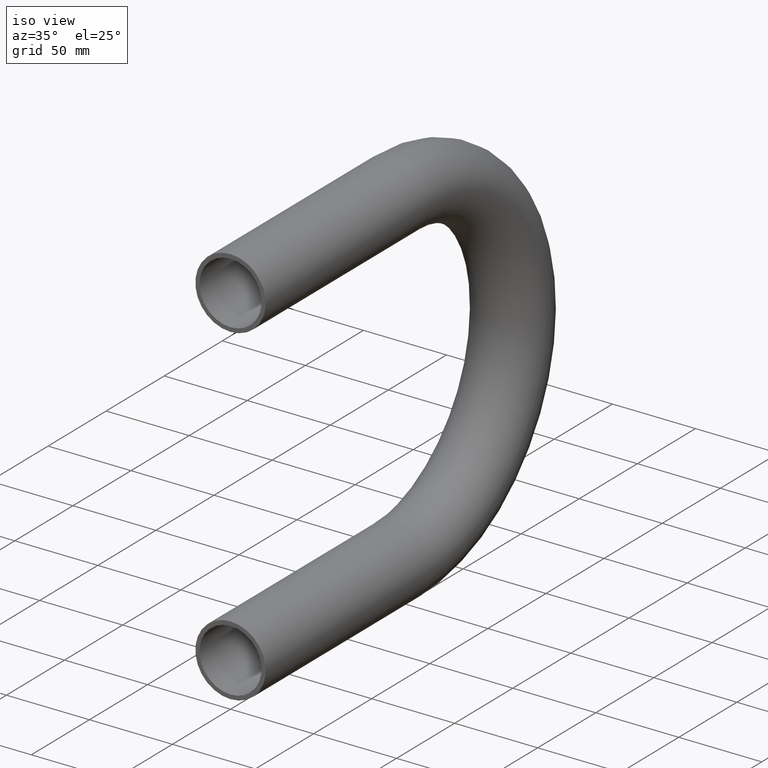
[diagram: clean part render]
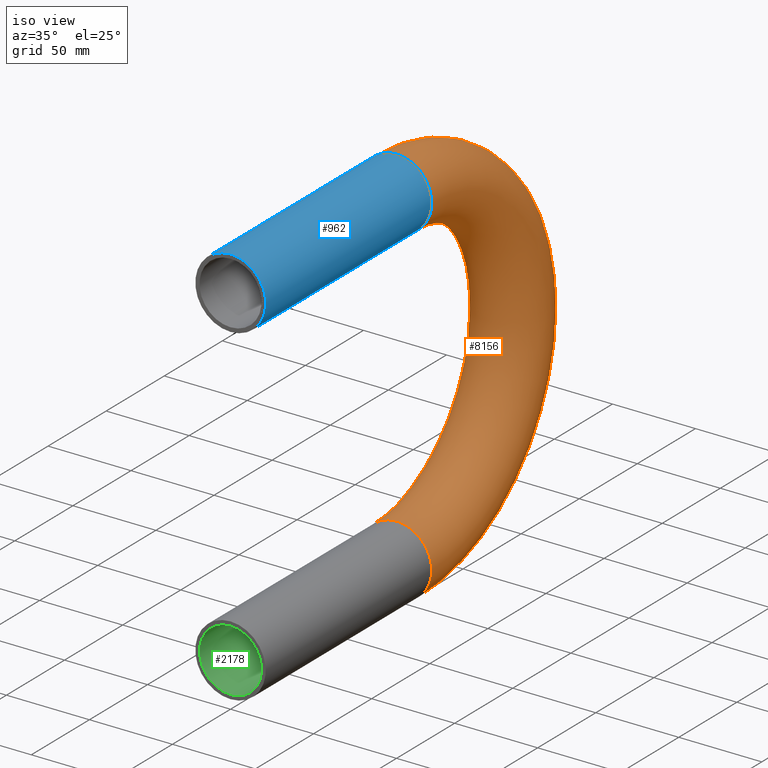
[diagram: same view with three faces highlighted in distinct colors, each labeled with its STEP entity id]
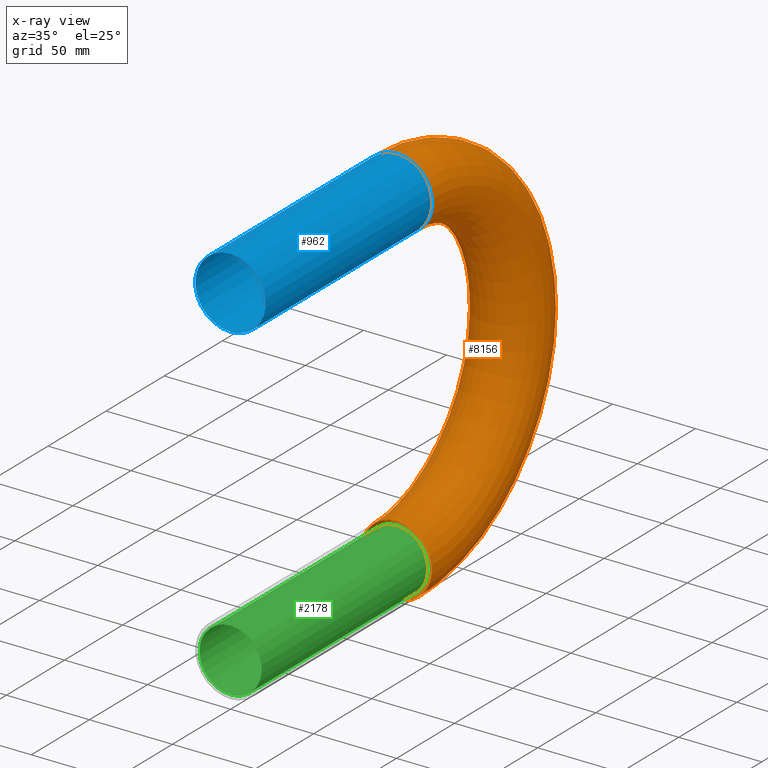
[diagram: x-ray of the same camera — body ghosted, the three highlighted faces saturated]
A machine part, iso view with three faces highlighted in distinct colors.
The next image is the same camera in x-ray (body ghosted, the three faces saturated) — at least one of them is partly hidden behind the body in this view.
Their STEP definitions:

[orange] entity #8156 — the highlighted toroidal blend (fillet) surface has major radius 100 mm and minor (blend) radius 21.2 mm.
#243 = DIRECTION ( 'NONE',  ( -1.000000000000000000, -0.000000000000000000, 0.000000000000000000 ) ) ;
#1250 = EDGE_CURVE ( 'NONE', #8990, #8990, #12047, .T. ) ;
#1697 = CARTESIAN_POINT ( 'NONE',  ( 0.000000000000000000, 142.9203673205103371, 5.220638928328961672E-29 ) ) ;
#2113 = DIRECTION ( 'NONE',  ( 0.000000000000000000, -1.000000000000000000, -1.224646799147353207E-16 ) ) ;
#2362 = CIRCLE ( 'NONE', #2966, 21.19999999999999574 ) ;
#2966 = AXIS2_PLACEMENT_3D ( 'NONE', #6913, #2113, #9660 ) ;
#3018 = DIRECTION ( 'NONE',  ( 0.000000000000000000, 0.000000000000000000, 1.000000000000000000 ) ) ;
#3861 = AXIS2_PLACEMENT_3D ( 'NONE', #9674, #243, #3018 ) ;
#4289 = FACE_OUTER_BOUND ( 'NONE', #4382, .T. ) ;
#4382 = EDGE_LOOP ( 'NONE', ( #10157 ) ) ;
#4556 = DIRECTION ( 'NONE',  ( 0.000000000000000000, 0.000000000000000000, 1.000000000000000000 ) ) ;
#4910 = CARTESIAN_POINT ( 'NONE',  ( 0.000000000000000000, 142.9203673205103371, -221.2000000000000171 ) ) ;
#5566 = EDGE_LOOP ( 'NONE', ( #8139 ) ) ;
#5906 = FACE_OUTER_BOUND ( 'NONE', #5566, .T. ) ;
#6205 = TOROIDAL_SURFACE ( 'NONE', #3861, 100.0000000000000000, 21.19999999999999929 ) ;
#6492 = DIRECTION ( 'NONE',  ( 0.000000000000000000, 1.000000000000000000, 0.000000000000000000 ) ) ;
#6913 = CARTESIAN_POINT ( 'NONE',  ( 0.000000000000000000, 142.9203673205103371, -200.0000000000000000 ) ) ;
#7235 = AXIS2_PLACEMENT_3D ( 'NONE', #1697, #6492, #4556 ) ;
#8139 = ORIENTED_EDGE ( 'NONE', *, *, #1250, .T. ) ;
#8156 = ADVANCED_FACE ( 'NONE', ( #5906, #4289 ), #6205, .T. ) ;
#8453 = EDGE_CURVE ( 'NONE', #8839, #8839, #2362, .T. ) ;
#8839 = VERTEX_POINT ( 'NONE', #4910 ) ;
#8990 = VERTEX_POINT ( 'NONE', #9534 ) ;
#9534 = CARTESIAN_POINT ( 'NONE',  ( 0.000000000000000000, 142.9203673205103371, 21.19999999999999929 ) ) ;
#9660 = DIRECTION ( 'NONE',  ( 0.000000000000000000, 0.000000000000000000, -1.000000000000000000 ) ) ;
#9674 = CARTESIAN_POINT ( 'NONE',  ( 0.000000000000000000, 142.9203673205103371, -100.0000000000000000 ) ) ;
#10157 = ORIENTED_EDGE ( 'NONE', *, *, #8453, .F. ) ;
#12047 = CIRCLE ( 'NONE', #7235, 21.19999999999999929 ) ;

[blue] entity #962 — the highlighted cylindrical surface (bore or boss wall) has radius 21.2 mm, axis along (-0, -1, -0).
#57 = AXIS2_PLACEMENT_3D ( 'NONE', #269, #1123, #2189 ) ;
#269 = CARTESIAN_POINT ( 'NONE',  ( 0.000000000000000000, 0.000000000000000000, 0.000000000000000000 ) ) ;
#962 = ADVANCED_FACE ( 'NONE', ( #1838, #1538 ), #11018, .T. ) ;
#1085 = CIRCLE ( 'NONE', #57, 21.19999999999999929 ) ;
#1123 = DIRECTION ( 'NONE',  ( 0.000000000000000000, 1.000000000000000000, 0.000000000000000000 ) ) ;
#1250 = EDGE_CURVE ( 'NONE', #8990, #8990, #12047, .T. ) ;
#1284 = EDGE_LOOP ( 'NONE', ( #6725 ) ) ;
#1538 = FACE_OUTER_BOUND ( 'NONE', #8233, .T. ) ;
#1697 = CARTESIAN_POINT ( 'NONE',  ( 0.000000000000000000, 142.9203673205103371, 5.220638928328961672E-29 ) ) ;
#1838 = FACE_OUTER_BOUND ( 'NONE', #1284, .T. ) ;
#2035 = CARTESIAN_POINT ( 'NONE',  ( 0.000000000000000000, 142.9203673205103371, 5.220638928328961672E-29 ) ) ;
#2075 = EDGE_CURVE ( 'NONE', #2354, #2354, #1085, .T. ) ;
#2189 = DIRECTION ( 'NONE',  ( 0.000000000000000000, 0.000000000000000000, 1.000000000000000000 ) ) ;
#2354 = VERTEX_POINT ( 'NONE', #2959 ) ;
#2959 = CARTESIAN_POINT ( 'NONE',  ( 0.000000000000000000, 0.000000000000000000, 21.19999999999999929 ) ) ;
#4047 = ORIENTED_EDGE ( 'NONE', *, *, #2075, .T. ) ;
#4556 = DIRECTION ( 'NONE',  ( 0.000000000000000000, 0.000000000000000000, 1.000000000000000000 ) ) ;
#6492 = DIRECTION ( 'NONE',  ( 0.000000000000000000, 1.000000000000000000, 0.000000000000000000 ) ) ;
#6725 = ORIENTED_EDGE ( 'NONE', *, *, #1250, .F. ) ;
#6782 = DIRECTION ( 'NONE',  ( -0.000000000000000000, -1.000000000000000000, -3.652830612043741974E-31 ) ) ;
#7235 = AXIS2_PLACEMENT_3D ( 'NONE', #1697, #6492, #4556 ) ;
#8233 = EDGE_LOOP ( 'NONE', ( #4047 ) ) ;
#8990 = VERTEX_POINT ( 'NONE', #9534 ) ;
#9534 = CARTESIAN_POINT ( 'NONE',  ( 0.000000000000000000, 142.9203673205103371, 21.19999999999999929 ) ) ;
#10885 = AXIS2_PLACEMENT_3D ( 'NONE', #2035, #6782, #11468 ) ;
#11018 = CYLINDRICAL_SURFACE ( 'NONE', #10885, 21.19999999999999929 ) ;
#11468 = DIRECTION ( 'NONE',  ( 0.000000000000000000, 0.000000000000000000, -1.000000000000000000 ) ) ;
#12047 = CIRCLE ( 'NONE', #7235, 21.19999999999999929 ) ;

[green] entity #2178 — the highlighted cylindrical surface (bore or boss wall) has radius 18.7 mm, axis along (0, -1, 0).
#313 = ORIENTED_EDGE ( 'NONE', *, *, #3053, .F. ) ;
#874 = VERTEX_POINT ( 'NONE', #3901 ) ;
#947 = DIRECTION ( 'NONE',  ( 0.000000000000000000, 1.224646799147353700E-16, -1.000000000000000000 ) ) ;
#1140 = AXIS2_PLACEMENT_3D ( 'NONE', #7378, #7082, #947 ) ;
#1488 = EDGE_CURVE ( 'NONE', #8697, #8697, #4927, .T. ) ;
#2178 = ADVANCED_FACE ( 'NONE', ( #4201, #3905 ), #6561, .F. ) ;
#2400 = DIRECTION ( 'NONE',  ( 0.000000000000000000, -1.000000000000000000, 0.000000000000000000 ) ) ;
#2572 = AXIS2_PLACEMENT_3D ( 'NONE', #8955, #2400, #8988 ) ;
#2723 = AXIS2_PLACEMENT_3D ( 'NONE', #7943, #9106, #3367 ) ;
#3053 = EDGE_CURVE ( 'NONE', #874, #874, #7289, .T. ) ;
#3367 = DIRECTION ( 'NONE',  ( 0.000000000000000000, 0.000000000000000000, -1.000000000000000000 ) ) ;
#3901 = CARTESIAN_POINT ( 'NONE',  ( 0.000000000000000000, 142.9203673205103371, -218.7000000000000171 ) ) ;
#3905 = FACE_OUTER_BOUND ( 'NONE', #9336, .T. ) ;
#4023 = CARTESIAN_POINT ( 'NONE',  ( 0.000000000000000000, 2.290089514405550899E-15, -218.7000000000000171 ) ) ;
#4201 = FACE_OUTER_BOUND ( 'NONE', #7249, .T. ) ;
#4927 = CIRCLE ( 'NONE', #1140, 18.69999999999999574 ) ;
#6561 = CYLINDRICAL_SURFACE ( 'NONE', #2572, 18.69999999999999574 ) ;
#7082 = DIRECTION ( 'NONE',  ( 0.000000000000000000, -1.000000000000000000, -1.224646799147353207E-16 ) ) ;
#7249 = EDGE_LOOP ( 'NONE', ( #313 ) ) ;
#7289 = CIRCLE ( 'NONE', #2723, 18.69999999999999574 ) ;
#7378 = CARTESIAN_POINT ( 'NONE',  ( 0.000000000000000000, 0.000000000000000000, -200.0000000000000000 ) ) ;
#7943 = CARTESIAN_POINT ( 'NONE',  ( 0.000000000000000000, 142.9203673205103371, -200.0000000000000000 ) ) ;
#8697 = VERTEX_POINT ( 'NONE', #4023 ) ;
#8955 = CARTESIAN_POINT ( 'NONE',  ( 0.000000000000000000, 142.9203673205103371, -200.0000000000000000 ) ) ;
#8988 = DIRECTION ( 'NONE',  ( 0.000000000000000000, 0.000000000000000000, -1.000000000000000000 ) ) ;
#9106 = DIRECTION ( 'NONE',  ( 0.000000000000000000, -1.000000000000000000, 0.000000000000000000 ) ) ;
#9336 = EDGE_LOOP ( 'NONE', ( #11482 ) ) ;
#11482 = ORIENTED_EDGE ( 'NONE', *, *, #1488, .T. ) ;